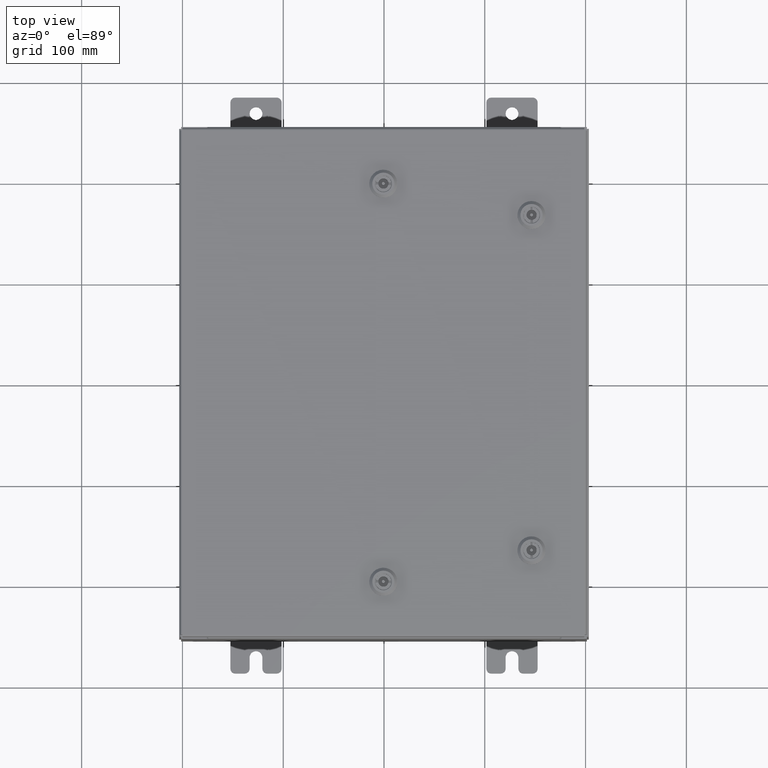
[diagram: clean part render]
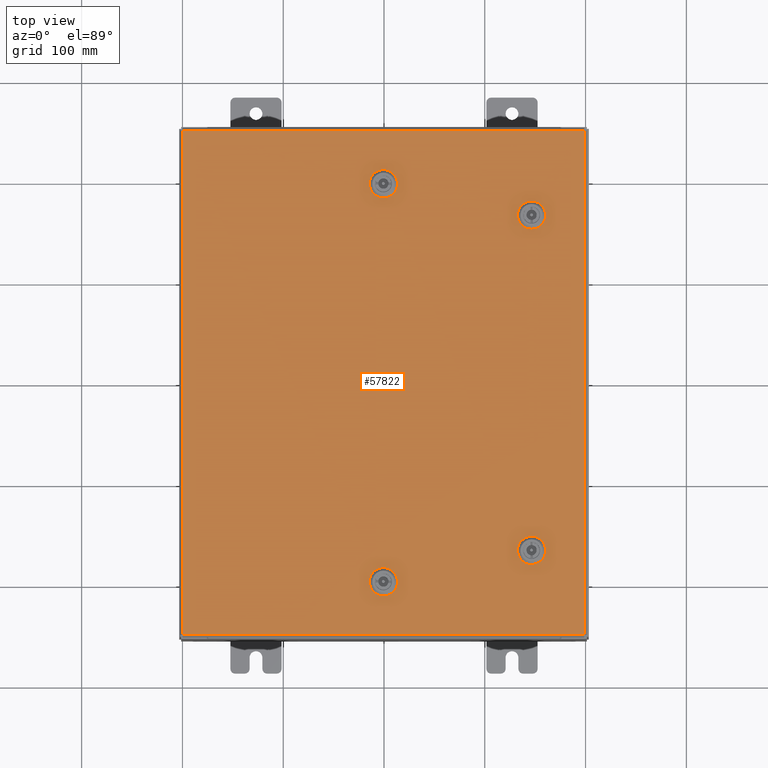
[diagram: same view with one face highlighted and labeled with its STEP entity id]
A machine part, top view. The second image highlights one B-rep face of the part: STEP entity #57822.
In plain terms, the highlighted planar face has unit normal (0, 0, -1).
Its self-contained STEP definition (entity closure, byte-faithful):
#214 = CARTESIAN_POINT ( 'NONE',  ( 5.392800000000015400, 6.761952375267901200, 0.0000000000000000000 ) ) ;
#748 = CARTESIAN_POINT ( 'NONE',  ( 7.849800000000000100, -9.849800000000001900, -2.219626494852214000E-016 ) ) ;
#1608 = DIRECTION ( 'NONE',  ( -0.0000000000000000000, -6.982962677686266700E-015, 1.000000000000000000 ) ) ;
#2815 = CARTESIAN_POINT ( 'NONE',  ( 1.529834876451987200E-014, 7.787799999999989200, 0.0000000000000000000 ) ) ;
#3173 = EDGE_CURVE ( 'NONE', #6730, #13566, #41159, .T. ) ;
#4140 = VERTEX_POINT ( 'NONE', #62780 ) ;
#4335 = EDGE_CURVE ( 'NONE', #11480, #40417, #60692, .T. ) ;
#4453 = CARTESIAN_POINT ( 'NONE',  ( 5.392800000000011800, 6.363047624732128100, 0.0000000000000000000 ) ) ;
#4769 = CIRCLE ( 'NONE', #13990, 0.4424999999999973400 ) ;
#4917 = DIRECTION ( 'NONE',  ( -1.000000000000000000, 0.0000000000000000000, -0.0000000000000000000 ) ) ;
#5175 = EDGE_CURVE ( 'NONE', #16977, #29407, #15037, .T. ) ;
#5277 = ORIENTED_EDGE ( 'NONE', *, *, #5175, .F. ) ;
#5350 = EDGE_CURVE ( 'NONE', #39920, #16977, #36486, .T. ) ;
#5479 = EDGE_LOOP ( 'NONE', ( #31211, #5277, #43459, #52855, #43214 ) ) ;
#5560 = VECTOR ( 'NONE', #19542, 39.37007874015748100 ) ;
#6121 = VERTEX_POINT ( 'NONE', #46767 ) ;
#6267 = CARTESIAN_POINT ( 'NONE',  ( -0.1994523752678689600, -7.392799999999992300, -4.686755060382689000E-014 ) ) ;
#6589 = EDGE_CURVE ( 'NONE', #18153, #8330, #20069, .T. ) ;
#6618 = CARTESIAN_POINT ( 'NONE',  ( 0.1994523752678995500, 7.392799999999993200, 0.0000000000000000000 ) ) ;
#6730 = VERTEX_POINT ( 'NONE', #34831 ) ;
#6973 = CARTESIAN_POINT ( 'NONE',  ( 1.529834876451987200E-014, 7.787799999999989200, 0.0000000000000000000 ) ) ;
#7316 = EDGE_LOOP ( 'NONE', ( #22397, #13347, #58769, #21835 ) ) ;
#8081 = DIRECTION ( 'NONE',  ( 1.000000000000000000, 0.0000000000000000000, 0.0000000000000000000 ) ) ;
#8108 = VERTEX_POINT ( 'NONE', #10034 ) ;
#8131 = CARTESIAN_POINT ( 'NONE',  ( 6.182800000000003000, 6.761952375267896700, 0.0000000000000000000 ) ) ;
#8287 = DIRECTION ( 'NONE',  ( 0.0000000000000000000, 0.0000000000000000000, 1.000000000000000000 ) ) ;
#8330 = VERTEX_POINT ( 'NONE', #45972 ) ;
#8532 = DIRECTION ( 'NONE',  ( 1.000000000000000000, 0.0000000000000000000, 0.0000000000000000000 ) ) ;
#8600 = DIRECTION ( 'NONE',  ( 0.0000000000000000000, 0.0000000000000000000, 1.000000000000000000 ) ) ;
#8631 = EDGE_CURVE ( 'NONE', #13566, #39920, #4769, .T. ) ;
#8700 = CARTESIAN_POINT ( 'NONE',  ( 1.529834876451987200E-014, 7.787799999999989200, 0.0000000000000000000 ) ) ;
#8731 = ORIENTED_EDGE ( 'NONE', *, *, #17308, .T. ) ;
#8768 = CARTESIAN_POINT ( 'NONE',  ( -0.1994523752678689600, 7.392799999999992300, 0.0000000000000000000 ) ) ;
#8822 = LINE ( 'NONE', #10272, #20247 ) ;
#9238 = CARTESIAN_POINT ( 'NONE',  ( 5.392800000000015400, 6.761952375267901200, 0.0000000000000000000 ) ) ;
#9667 = EDGE_LOOP ( 'NONE', ( #21914, #47120, #53853, #12005, #34371 ) ) ;
#10034 = CARTESIAN_POINT ( 'NONE',  ( 5.392800000000012700, -6.363047624732128100, 0.0000000000000000000 ) ) ;
#10272 = CARTESIAN_POINT ( 'NONE',  ( 0.1994523752678995500, -7.392799999999993200, -4.686755060382689600E-014 ) ) ;
#10768 = DIRECTION ( 'NONE',  ( 8.218046007208852600E-015, 1.000000000000000000, 6.982962677686325100E-015 ) ) ;
#10822 = CARTESIAN_POINT ( 'NONE',  ( 6.182800000000003800, -6.761952375267896700, -2.443558770110843000E-013 ) ) ;
#11480 = VERTEX_POINT ( 'NONE', #33730 ) ;
#11942 = CARTESIAN_POINT ( 'NONE',  ( 0.4425000000000126100, -7.787799999999989200, -4.962582086151294400E-014 ) ) ;
#12005 = ORIENTED_EDGE ( 'NONE', *, *, #17575, .F. ) ;
#12419 = EDGE_LOOP ( 'NONE', ( #17876, #40770, #60267, #54436 ) ) ;
#12583 = EDGE_CURVE ( 'NONE', #6121, #50167, #27456, .T. ) ;
#12694 = EDGE_CURVE ( 'NONE', #13227, #46100, #29006, .T. ) ;
#12775 = CARTESIAN_POINT ( 'NONE',  ( 5.787800000000008700, -6.562500000000010700, -2.429631085186127400E-013 ) ) ;
#12870 = DIRECTION ( 'NONE',  ( -1.095739467627835000E-014, -1.000000000000000000, 0.0000000000000000000 ) ) ;
#12936 = AXIS2_PLACEMENT_3D ( 'NONE', #27504, #61405, #32460 ) ;
#13227 = VERTEX_POINT ( 'NONE', #214 ) ;
#13347 = ORIENTED_EDGE ( 'NONE', *, *, #55392, .F. ) ;
#13566 = VERTEX_POINT ( 'NONE', #58143 ) ;
#13627 = CARTESIAN_POINT ( 'NONE',  ( 7.849800000000000100, -9.849800000000001900, -2.219626494852214000E-016 ) ) ;
#13720 = CARTESIAN_POINT ( 'NONE',  ( 6.182800000000003000, 6.761952375267896700, 0.0000000000000000000 ) ) ;
#13990 = AXIS2_PLACEMENT_3D ( 'NONE', #8700, #8287, #8081 ) ;
#15037 = CIRCLE ( 'NONE', #45759, 0.4424999999999979500 ) ;
#15133 = EDGE_CURVE ( 'NONE', #47584, #13227, #62192, .T. ) ;
#15662 = VECTOR ( 'NONE', #44370, 39.37007874015748100 ) ;
#15885 = AXIS2_PLACEMENT_3D ( 'NONE', #30932, #1608, #35853 ) ;
#16136 = VERTEX_POINT ( 'NONE', #6267 ) ;
#16977 = VERTEX_POINT ( 'NONE', #61443 ) ;
#17212 = LINE ( 'NONE', #39508, #15662 ) ;
#17279 = CARTESIAN_POINT ( 'NONE',  ( 0.1994523752679067700, 8.182799999999980800, 0.0000000000000000000 ) ) ;
#17308 = EDGE_CURVE ( 'NONE', #8330, #11480, #17212, .T. ) ;
#17542 = AXIS2_PLACEMENT_3D ( 'NONE', #18987, #53023, #23920 ) ;
#17575 = EDGE_CURVE ( 'NONE', #30382, #58779, #34057, .T. ) ;
#17622 = DIRECTION ( 'NONE',  ( -1.000000000000000000, 1.369674334534795400E-014, 0.0000000000000000000 ) ) ;
#17645 = DIRECTION ( 'NONE',  ( 0.0000000000000000000, 1.000000000000000000, 6.982962677686287200E-015 ) ) ;
#17876 = ORIENTED_EDGE ( 'NONE', *, *, #32516, .F. ) ;
#18153 = VERTEX_POINT ( 'NONE', #59050 ) ;
#18987 = CARTESIAN_POINT ( 'NONE',  ( 5.787800000000008700, -6.562500000000010700, -2.429631085186127400E-013 ) ) ;
#19182 = DIRECTION ( 'NONE',  ( 8.218046007208762600E-015, -1.000000000000000000, -6.982962677686248600E-015 ) ) ;
#19542 = DIRECTION ( 'NONE',  ( 1.000000000000000000, 1.369674334534795400E-014, 9.732121487607481600E-029 ) ) ;
#20069 = LINE ( 'NONE', #55746, #41478 ) ;
#20247 = VECTOR ( 'NONE', #49249, 39.37007874015748100 ) ;
#20570 = DIRECTION ( 'NONE',  ( 0.0000000000000000000, 0.0000000000000000000, 1.000000000000000000 ) ) ;
#21006 = VECTOR ( 'NONE', #47930, 39.37007874015748100 ) ;
#21835 = ORIENTED_EDGE ( 'NONE', *, *, #15133, .F. ) ;
#21868 = DIRECTION ( 'NONE',  ( 1.000000000000000000, 0.0000000000000000000, 0.0000000000000000000 ) ) ;
#21914 = ORIENTED_EDGE ( 'NONE', *, *, #42100, .F. ) ;
#22046 = FACE_BOUND ( 'NONE', #12419, .T. ) ;
#22397 = ORIENTED_EDGE ( 'NONE', *, *, #56086, .F. ) ;
#23499 = VECTOR ( 'NONE', #30786, 39.37007874015748100 ) ;
#23569 = FACE_BOUND ( 'NONE', #9667, .T. ) ;
#23846 = DIRECTION ( 'NONE',  ( 0.0000000000000000000, 0.0000000000000000000, 1.000000000000000000 ) ) ;
#23920 = DIRECTION ( 'NONE',  ( 0.0000000000000000000, 1.000000000000000000, 6.982962677686270700E-015 ) ) ;
#24355 = DIRECTION ( 'NONE',  ( -0.0000000000000000000, -6.982962677686266700E-015, 1.000000000000000000 ) ) ;
#24703 = ORIENTED_EDGE ( 'NONE', *, *, #6589, .T. ) ;
#25392 = DIRECTION ( 'NONE',  ( -1.000000000000000000, -0.0000000000000000000, -0.0000000000000000000 ) ) ;
#25843 = EDGE_CURVE ( 'NONE', #16136, #45059, #38478, .T. ) ;
#27403 = CARTESIAN_POINT ( 'NONE',  ( -0.1994523752678657400, -8.182799999999987900, 0.0000000000000000000 ) ) ;
#27456 = LINE ( 'NONE', #10822, #41980 ) ;
#27504 = CARTESIAN_POINT ( 'NONE',  ( 1.529834876451987200E-014, -7.787799999999989200, -4.962582086151294400E-014 ) ) ;
#28901 = CARTESIAN_POINT ( 'NONE',  ( 6.182800000000005600, 6.363047624732128100, 0.0000000000000000000 ) ) ;
#29006 = LINE ( 'NONE', #9238, #61570 ) ;
#29287 = CARTESIAN_POINT ( 'NONE',  ( 0.0000000000000000000, 0.0000000000000000000, 0.0000000000000000000 ) ) ;
#29407 = VERTEX_POINT ( 'NONE', #8768 ) ;
#29547 = CARTESIAN_POINT ( 'NONE',  ( 6.182800000000007400, -6.363047624732128100, -2.415703400261412200E-013 ) ) ;
#30382 = VERTEX_POINT ( 'NONE', #11942 ) ;
#30786 = DIRECTION ( 'NONE',  ( 1.000000000000000000, -0.0000000000000000000, -0.0000000000000000000 ) ) ;
#30932 = CARTESIAN_POINT ( 'NONE',  ( 1.529834876451987200E-014, -7.787799999999989200, -4.962582086151294400E-014 ) ) ;
#31129 = AXIS2_PLACEMENT_3D ( 'NONE', #53463, #24355, #58322 ) ;
#31211 = ORIENTED_EDGE ( 'NONE', *, *, #51275, .F. ) ;
#31881 = ORIENTED_EDGE ( 'NONE', *, *, #4335, .T. ) ;
#32051 = VECTOR ( 'NONE', #19182, 39.37007874015748100 ) ;
#32058 = CIRCLE ( 'NONE', #34156, 0.4424999999999983400 ) ;
#32354 = CARTESIAN_POINT ( 'NONE',  ( -7.849800000000000100, -9.849800000000001900, -2.048885995248197400E-016 ) ) ;
#32460 = DIRECTION ( 'NONE',  ( 0.0000000000000000000, 1.000000000000000000, 6.982962677686252500E-015 ) ) ;
#32516 = EDGE_CURVE ( 'NONE', #8108, #4140, #60812, .T. ) ;
#33103 = CIRCLE ( 'NONE', #31129, 0.4424999999999972800 ) ;
#33730 = CARTESIAN_POINT ( 'NONE',  ( -7.849800000000000100, -9.849800000000001900, -2.048885995248197400E-016 ) ) ;
#33742 = CIRCLE ( 'NONE', #40191, 0.4424999999999972800 ) ;
#34057 = CIRCLE ( 'NONE', #15885, 0.4424999999999972800 ) ;
#34156 = AXIS2_PLACEMENT_3D ( 'NONE', #49763, #20570, #54588 ) ;
#34371 = ORIENTED_EDGE ( 'NONE', *, *, #50844, .F. ) ;
#34831 = CARTESIAN_POINT ( 'NONE',  ( 0.1994523752678995500, 7.392799999999993200, 0.0000000000000000000 ) ) ;
#35087 = FACE_BOUND ( 'NONE', #5479, .T. ) ;
#35853 = DIRECTION ( 'NONE',  ( 0.0000000000000000000, 1.000000000000000000, 6.982962677686269100E-015 ) ) ;
#35895 = DIRECTION ( 'NONE',  ( 1.000000000000000000, 2.739348669069617500E-015, -0.0000000000000000000 ) ) ;
#36337 = VERTEX_POINT ( 'NONE', #28901 ) ;
#36486 = LINE ( 'NONE', #17279, #47830 ) ;
#36611 = FACE_BOUND ( 'NONE', #7316, .T. ) ;
#37768 = CIRCLE ( 'NONE', #17542, 0.4424999999999983400 ) ;
#38289 = DIRECTION ( 'NONE',  ( -8.218046007208852600E-015, 1.000000000000000000, -0.0000000000000000000 ) ) ;
#38478 = CIRCLE ( 'NONE', #12936, 0.4424999999999983400 ) ;
#38710 = EDGE_CURVE ( 'NONE', #58779, #16136, #8822, .T. ) ;
#39508 = CARTESIAN_POINT ( 'NONE',  ( -7.849800000000000100, 9.849799999999996600, -2.048885995248197400E-016 ) ) ;
#39920 = VERTEX_POINT ( 'NONE', #62101 ) ;
#40191 = AXIS2_PLACEMENT_3D ( 'NONE', #12775, #46891, #17645 ) ;
#40417 = VERTEX_POINT ( 'NONE', #748 ) ;
#40770 = ORIENTED_EDGE ( 'NONE', *, *, #62906, .F. ) ;
#41159 = CIRCLE ( 'NONE', #52929, 0.4424999999999973400 ) ;
#41478 = VECTOR ( 'NONE', #25392, 39.37007874015748100 ) ;
#41980 = VECTOR ( 'NONE', #10768, 39.37007874015748100 ) ;
#42100 = EDGE_CURVE ( 'NONE', #45059, #46065, #57321, .T. ) ;
#43214 = ORIENTED_EDGE ( 'NONE', *, *, #3173, .F. ) ;
#43439 = DIRECTION ( 'NONE',  ( 1.000000000000000000, 0.0000000000000000000, 0.0000000000000000000 ) ) ;
#43459 = ORIENTED_EDGE ( 'NONE', *, *, #5350, .F. ) ;
#43579 = DIRECTION ( 'NONE',  ( 0.0000000000000000000, 0.0000000000000000000, 1.000000000000000000 ) ) ;
#43780 = CARTESIAN_POINT ( 'NONE',  ( 5.787800000000007800, 6.562500000000010700, 0.0000000000000000000 ) ) ;
#44242 = EDGE_CURVE ( 'NONE', #4140, #6121, #33742, .T. ) ;
#44370 = DIRECTION ( 'NONE',  ( 0.0000000000000000000, -1.000000000000000000, 0.0000000000000000000 ) ) ;
#45059 = VERTEX_POINT ( 'NONE', #27403 ) ;
#45759 = AXIS2_PLACEMENT_3D ( 'NONE', #6973, #8600, #8532 ) ;
#45972 = CARTESIAN_POINT ( 'NONE',  ( -7.849800000000000100, 9.849799999999996600, -2.048885995248197400E-016 ) ) ;
#46065 = VERTEX_POINT ( 'NONE', #48173 ) ;
#46100 = VERTEX_POINT ( 'NONE', #4453 ) ;
#46767 = CARTESIAN_POINT ( 'NONE',  ( 6.182800000000003800, -6.761952375267896700, -2.443558770110843000E-013 ) ) ;
#46891 = DIRECTION ( 'NONE',  ( -0.0000000000000000000, -6.982962677686266700E-015, 1.000000000000000000 ) ) ;
#47120 = ORIENTED_EDGE ( 'NONE', *, *, #25843, .F. ) ;
#47264 = AXIS2_PLACEMENT_3D ( 'NONE', #29287, #53261, #4917 ) ;
#47584 = VERTEX_POINT ( 'NONE', #8131 ) ;
#47830 = VECTOR ( 'NONE', #17622, 39.37007874015748100 ) ;
#47912 = CARTESIAN_POINT ( 'NONE',  ( 0.1994523752678995500, -7.392799999999993200, -4.686755060382689600E-014 ) ) ;
#47930 = DIRECTION ( 'NONE',  ( 0.0000000000000000000, 1.000000000000000000, 0.0000000000000000000 ) ) ;
#47968 = FACE_OUTER_BOUND ( 'NONE', #59756, .T. ) ;
#48173 = CARTESIAN_POINT ( 'NONE',  ( 0.1994523752679070700, -8.182799999999980800, -5.238409111919896100E-014 ) ) ;
#48247 = LINE ( 'NONE', #6618, #49764 ) ;
#48462 = LINE ( 'NONE', #13627, #21006 ) ;
#48741 = CARTESIAN_POINT ( 'NONE',  ( 0.1994523752679067700, -8.182799999999980800, -5.238409111919896100E-014 ) ) ;
#49249 = DIRECTION ( 'NONE',  ( -1.000000000000000000, 2.739348669069617500E-015, 1.946424297521515400E-029 ) ) ;
#49763 = CARTESIAN_POINT ( 'NONE',  ( 5.787800000000007800, 6.562500000000010700, 0.0000000000000000000 ) ) ;
#49764 = VECTOR ( 'NONE', #35895, 39.37007874015748100 ) ;
#50167 = VERTEX_POINT ( 'NONE', #29547 ) ;
#50844 = EDGE_CURVE ( 'NONE', #46065, #30382, #33103, .T. ) ;
#50984 = VECTOR ( 'NONE', #38289, 39.37007874015748100 ) ;
#51275 = EDGE_CURVE ( 'NONE', #29407, #6730, #48247, .T. ) ;
#52466 = LINE ( 'NONE', #13720, #50984 ) ;
#52855 = ORIENTED_EDGE ( 'NONE', *, *, #8631, .F. ) ;
#52929 = AXIS2_PLACEMENT_3D ( 'NONE', #2815, #23846, #21868 ) ;
#53023 = DIRECTION ( 'NONE',  ( -0.0000000000000000000, -6.982962677686266700E-015, 1.000000000000000000 ) ) ;
#53261 = DIRECTION ( 'NONE',  ( 0.0000000000000000000, 0.0000000000000000000, -1.000000000000000000 ) ) ;
#53463 = CARTESIAN_POINT ( 'NONE',  ( 1.529834876451987200E-014, -7.787799999999989200, -4.962582086151294400E-014 ) ) ;
#53853 = ORIENTED_EDGE ( 'NONE', *, *, #38710, .F. ) ;
#54436 = ORIENTED_EDGE ( 'NONE', *, *, #44242, .F. ) ;
#54588 = DIRECTION ( 'NONE',  ( 1.000000000000000000, 0.0000000000000000000, 0.0000000000000000000 ) ) ;
#55392 = EDGE_CURVE ( 'NONE', #46100, #36337, #32058, .T. ) ;
#55746 = CARTESIAN_POINT ( 'NONE',  ( 7.849800000000000100, 9.849799999999996600, -2.048885995248197400E-016 ) ) ;
#56078 = ORIENTED_EDGE ( 'NONE', *, *, #61416, .T. ) ;
#56086 = EDGE_CURVE ( 'NONE', #36337, #47584, #52466, .T. ) ;
#56996 = AXIS2_PLACEMENT_3D ( 'NONE', #43780, #43579, #43439 ) ;
#57321 = LINE ( 'NONE', #48741, #5560 ) ;
#57822 = ADVANCED_FACE ( 'NONE', ( #22046, #36611, #23569, #35087, #47968 ), #58328, .F. ) ;
#58086 = CARTESIAN_POINT ( 'NONE',  ( 5.392800000000015400, -6.761952375267901200, -2.443558770110843000E-013 ) ) ;
#58143 = CARTESIAN_POINT ( 'NONE',  ( 0.4425000000000126100, 7.787799999999989200, 0.0000000000000000000 ) ) ;
#58322 = DIRECTION ( 'NONE',  ( 0.0000000000000000000, 1.000000000000000000, 6.982962677686269100E-015 ) ) ;
#58328 = PLANE ( 'NONE',  #47264 ) ;
#58769 = ORIENTED_EDGE ( 'NONE', *, *, #12694, .F. ) ;
#58779 = VERTEX_POINT ( 'NONE', #47912 ) ;
#59050 = CARTESIAN_POINT ( 'NONE',  ( 7.849800000000000100, 9.849799999999996600, -2.048885995248197400E-016 ) ) ;
#59756 = EDGE_LOOP ( 'NONE', ( #31881, #56078, #24703, #8731 ) ) ;
#60267 = ORIENTED_EDGE ( 'NONE', *, *, #12583, .F. ) ;
#60692 = LINE ( 'NONE', #32354, #23499 ) ;
#60812 = LINE ( 'NONE', #58086, #32051 ) ;
#61405 = DIRECTION ( 'NONE',  ( -0.0000000000000000000, -6.982962677686266700E-015, 1.000000000000000000 ) ) ;
#61416 = EDGE_CURVE ( 'NONE', #40417, #18153, #48462, .T. ) ;
#61443 = CARTESIAN_POINT ( 'NONE',  ( -0.1994523752678657400, 8.182799999999986100, 0.0000000000000000000 ) ) ;
#61570 = VECTOR ( 'NONE', #12870, 39.37007874015748100 ) ;
#62101 = CARTESIAN_POINT ( 'NONE',  ( 0.1994523752679068500, 8.182799999999980800, 0.0000000000000000000 ) ) ;
#62192 = CIRCLE ( 'NONE', #56996, 0.4424999999999972800 ) ;
#62780 = CARTESIAN_POINT ( 'NONE',  ( 5.392800000000015400, -6.761952375267901200, -2.443558770110843000E-013 ) ) ;
#62906 = EDGE_CURVE ( 'NONE', #50167, #8108, #37768, .T. ) ;